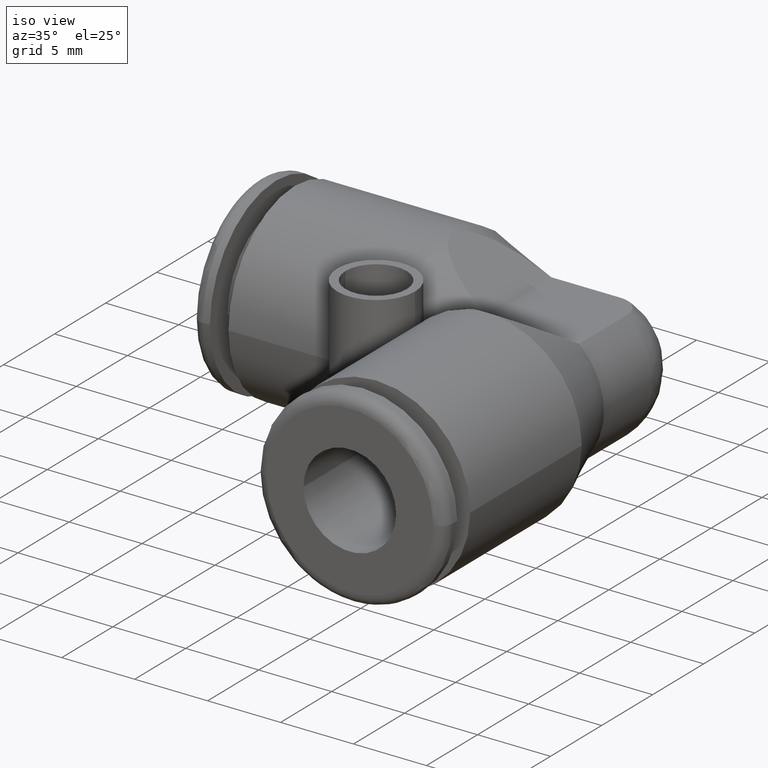
[diagram: clean part render]
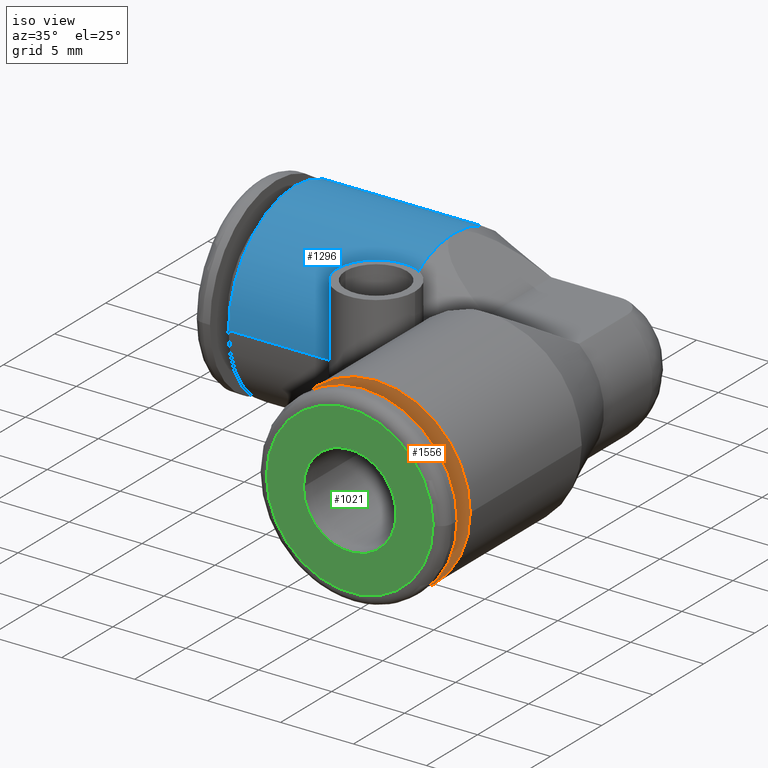
[diagram: same view with three faces highlighted in distinct colors, each labeled with its STEP entity id]
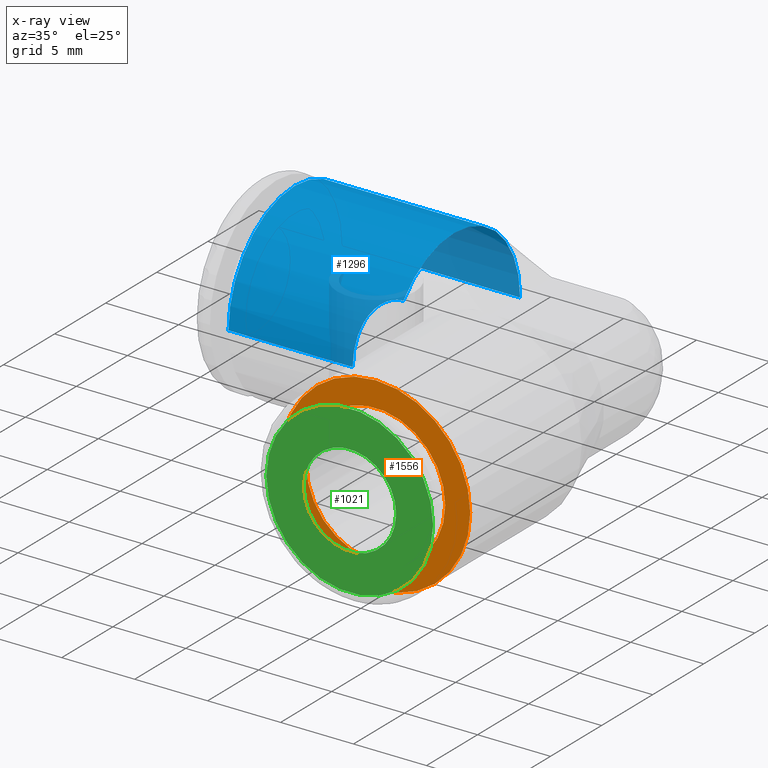
[diagram: x-ray of the same camera — body ghosted, the three highlighted faces saturated]
A machine part, iso view with three faces highlighted in distinct colors.
The next image is the same camera in x-ray (body ghosted, the three faces saturated) — at least one of them is partly hidden behind the body in this view.
Their STEP definitions:

[orange] entity #1556 — the highlighted planar face has unit normal (0, -1, 0).
#535=CARTESIAN_POINT('',(0.E0,-7.3E-1,0.E0));
#536=DIRECTION('',(0.E0,-1.E0,0.E0));
#537=DIRECTION('',(1.E0,0.E0,0.E0));
#538=AXIS2_PLACEMENT_3D('',#535,#536,#537);
#580=CARTESIAN_POINT('',(0.E0,-7.3E-1,0.E0));
#581=DIRECTION('',(0.E0,1.E0,0.E0));
#582=DIRECTION('',(1.E0,0.E0,0.E0));
#583=AXIS2_PLACEMENT_3D('',#580,#581,#582);
#641=CARTESIAN_POINT('',(0.E0,-7.3E-1,0.E0));
#642=DIRECTION('',(0.E0,1.E0,0.E0));
#643=DIRECTION('',(1.E0,0.E0,0.E0));
#644=AXIS2_PLACEMENT_3D('',#641,#642,#643);
#646=CARTESIAN_POINT('',(0.E0,-7.3E-1,0.E0));
#647=DIRECTION('',(0.E0,-1.E0,0.E0));
#648=DIRECTION('',(1.E0,0.E0,0.E0));
#649=AXIS2_PLACEMENT_3D('',#646,#647,#648);
#888=CARTESIAN_POINT('',(2.55E-1,-7.3E-1,0.E0));
#890=VERTEX_POINT('',#888);
#907=CARTESIAN_POINT('',(1.875E-1,-7.3E-1,0.E0));
#909=VERTEX_POINT('',#907);
#911=CARTESIAN_POINT('',(-1.875E-1,-7.3E-1,0.E0));
#913=VERTEX_POINT('',#911);
#918=CARTESIAN_POINT('',(-2.55E-1,-7.3E-1,0.E0));
#919=VERTEX_POINT('',#918);
#1541=CARTESIAN_POINT('',(0.E0,-7.3E-1,0.E0));
#1542=DIRECTION('',(0.E0,-1.E0,0.E0));
#1543=DIRECTION('',(-1.E0,0.E0,0.E0));
#1544=AXIS2_PLACEMENT_3D('',#1541,#1542,#1543);
#1545=PLANE('',#1544);
#1546=ORIENTED_EDGE('',*,*,#1440,.F.);
#1547=ORIENTED_EDGE('',*,*,#1460,.T.);
#1548=EDGE_LOOP('',(#1546,#1547));
#1549=FACE_OUTER_BOUND('',#1548,.F.);
#1551=ORIENTED_EDGE('',*,*,#1550,.F.);
#1553=ORIENTED_EDGE('',*,*,#1552,.T.);
#1554=EDGE_LOOP('',(#1551,#1553));
#1555=FACE_BOUND('',#1554,.F.);
#1556=ADVANCED_FACE('',(#1549,#1555),#1545,.T.);
#539=CIRCLE('',#538,2.55E-1);
#584=CIRCLE('',#583,2.55E-1);
#645=CIRCLE('',#644,1.875E-1);
#650=CIRCLE('',#649,1.875E-1);
#1440=EDGE_CURVE('',#890,#919,#539,.T.);
#1460=EDGE_CURVE('',#890,#919,#584,.T.);
#1550=EDGE_CURVE('',#909,#913,#645,.T.);
#1552=EDGE_CURVE('',#909,#913,#650,.T.);

[blue] entity #1296 — the highlighted cylindrical surface (partial cylindrical patch) has radius 6.477 mm, axis along (1, 0, 0).
#338=CARTESIAN_POINT('',(-7.3E-1,0.E0,0.E0));
#339=DIRECTION('',(1.E0,0.E0,0.E0));
#340=DIRECTION('',(0.E0,1.E0,0.E0));
#341=AXIS2_PLACEMENT_3D('',#338,#339,#340);
#348=CARTESIAN_POINT('',(-3.E-1,0.E0,0.E0));
#349=DIRECTION('',(1.E0,0.E0,0.E0));
#350=DIRECTION('',(0.E0,1.E0,0.E0));
#351=AXIS2_PLACEMENT_3D('',#348,#349,#350);
#353=CARTESIAN_POINT('',(-3.E-1,0.E0,0.E0));
#354=DIRECTION('',(1.E0,0.E0,0.E0));
#355=DIRECTION('',(0.E0,9.311976451540E-7,9.999999999996E-1));
#356=AXIS2_PLACEMENT_3D('',#353,#354,#355);
#358=CARTESIAN_POINT('',(-3.E-1,-1.95E-1,1.643167672515E-1));
#359=CARTESIAN_POINT('',(-3.044697859419E-1,-1.95E-1,1.643167672515E-1));
#360=CARTESIAN_POINT('',(-3.132695326104E-1,-1.955398471062E-1,
1.636809693769E-1));
#361=CARTESIAN_POINT('',(-3.268893782969E-1,-1.982153349675E-1,
1.604520040093E-1));
#362=CARTESIAN_POINT('',(-3.384107549363E-1,-2.020552765828E-1,
1.556111177859E-1));
#363=CARTESIAN_POINT('',(-3.485003067142E-1,-2.066700247858E-1,
1.494514759600E-1));
#364=CARTESIAN_POINT('',(-3.572790369682E-1,-2.118192617506E-1,
1.420851790614E-1));
#365=CARTESIAN_POINT('',(-3.648958623081E-1,-2.172946537848E-1,
1.335857938633E-1));
#366=CARTESIAN_POINT('',(-3.713316011640E-1,-2.228112822687E-1,
1.241849581993E-1));
#367=CARTESIAN_POINT('',(-3.766527918170E-1,-2.281269848004E-1,
1.141352200156E-1));
#368=CARTESIAN_POINT('',(-3.809932047856E-1,-2.330816908493E-1,
1.036563233728E-1));
#369=CARTESIAN_POINT('',(-3.846780453845E-1,-2.378245058896E-1,
9.230141911064E-2));
#370=CARTESIAN_POINT('',(-3.878444839886E-1,-2.424003381803E-1,
7.958589957115E-2));
#371=CARTESIAN_POINT('',(-3.904676804500E-1,-2.466365262385E-1,
6.538290296939E-2));
#372=CARTESIAN_POINT('',(-3.924997516110E-1,-2.502686757192E-1,
4.980784223762E-2));
#373=CARTESIAN_POINT('',(-3.939106615190E-1,-2.530133867205E-1,
3.325420144376E-2));
#374=CARTESIAN_POINT('',(-3.947082784029E-1,-2.546599044207E-1,
1.633665921306E-2));
#375=CARTESIAN_POINT('',(-3.948683298051E-1,-2.55E-1,5.409174075008E-3));
#376=CARTESIAN_POINT('',(-3.948683298051E-1,-2.55E-1,0.E0));
#409=DIRECTION('',(-1.E0,0.E0,0.E0));
#410=VECTOR('',#409,4.3E-1);
#411=CARTESIAN_POINT('',(-3.E-1,2.55E-1,0.E0));
#412=LINE('',#411,#410);
#413=DIRECTION('',(-1.E0,0.E0,0.E0));
#414=VECTOR('',#413,3.351316701949E-1);
#415=CARTESIAN_POINT('',(-3.948683298051E-1,-2.55E-1,0.E0));
#416=LINE('',#415,#414);
#920=CARTESIAN_POINT('',(-3.E-1,2.55E-1,0.E0));
#921=CARTESIAN_POINT('',(-7.3E-1,2.55E-1,0.E0));
#922=VERTEX_POINT('',#920);
#923=VERTEX_POINT('',#921);
#932=CARTESIAN_POINT('',(-7.3E-1,-2.55E-1,0.E0));
#933=VERTEX_POINT('',#932);
#949=VERTEX_POINT('',#358);
#950=VERTEX_POINT('',#376);
#978=CARTESIAN_POINT('',(-3.E-1,2.374553995143E-7,2.549999999999E-1));
#979=VERTEX_POINT('',#978);
#1278=CARTESIAN_POINT('',(-8.715E-1,0.E0,0.E0));
#1279=DIRECTION('',(1.E0,0.E0,0.E0));
#1280=DIRECTION('',(0.E0,-1.E0,0.E0));
#1281=AXIS2_PLACEMENT_3D('',#1278,#1279,#1280);
#1282=CYLINDRICAL_SURFACE('',#1281,2.55E-1);
#1284=ORIENTED_EDGE('',*,*,#1283,.T.);
#1286=ORIENTED_EDGE('',*,*,#1285,.T.);
#1288=ORIENTED_EDGE('',*,*,#1287,.T.);
#1290=ORIENTED_EDGE('',*,*,#1289,.T.);
#1291=ORIENTED_EDGE('',*,*,#1267,.F.);
#1293=ORIENTED_EDGE('',*,*,#1292,.F.);
#1294=EDGE_LOOP('',(#1284,#1286,#1288,#1290,#1291,#1293));
#1295=FACE_OUTER_BOUND('',#1294,.F.);
#1296=ADVANCED_FACE('',(#1295),#1282,.T.);
#342=CIRCLE('',#341,2.55E-1);
#352=CIRCLE('',#351,2.55E-1);
#357=CIRCLE('',#356,2.55E-1);
#377=B_SPLINE_CURVE_WITH_KNOTS('',3,(#358,#359,#360,#361,#362,#363,#364,#365,
#366,#367,#368,#369,#370,#371,#372,#373,#374,#375,#376),.UNSPECIFIED.,.F.,.F.,
(4,1,1,1,1,1,1,1,1,1,1,1,1,1,1,1,4),(0.E0,6.25E-2,1.25E-1,1.875E-1,2.5E-1,
3.125E-1,3.75E-1,4.375E-1,5.E-1,5.625E-1,6.25E-1,6.875E-1,7.5E-1,8.125E-1,
8.75E-1,9.375E-1,1.E0),.UNSPECIFIED.);
#1267=EDGE_CURVE('',#923,#933,#342,.T.);
#1283=EDGE_CURVE('',#922,#979,#352,.T.);
#1285=EDGE_CURVE('',#979,#949,#357,.T.);
#1287=EDGE_CURVE('',#949,#950,#377,.T.);
#1289=EDGE_CURVE('',#950,#933,#416,.T.);
#1292=EDGE_CURVE('',#922,#923,#412,.T.);

[green] entity #1021 — the highlighted planar face has unit normal (0, -1, 0).
#112=CARTESIAN_POINT('',(0.E0,-8.3E-1,0.E0));
#113=DIRECTION('',(0.E0,1.E0,0.E0));
#114=DIRECTION('',(-1.E0,0.E0,0.E0));
#115=AXIS2_PLACEMENT_3D('',#112,#113,#114);
#117=CARTESIAN_POINT('',(0.E0,-8.3E-1,0.E0));
#118=DIRECTION('',(0.E0,1.E0,0.E0));
#119=DIRECTION('',(1.E0,0.E0,0.E0));
#120=AXIS2_PLACEMENT_3D('',#117,#118,#119);
#692=CARTESIAN_POINT('',(0.E0,-8.3E-1,0.E0));
#693=DIRECTION('',(0.E0,1.E0,0.E0));
#694=DIRECTION('',(1.E0,0.E0,0.E0));
#695=AXIS2_PLACEMENT_3D('',#692,#693,#694);
#707=CARTESIAN_POINT('',(0.E0,-8.3E-1,0.E0));
#708=DIRECTION('',(0.E0,1.E0,0.E0));
#709=DIRECTION('',(-1.E0,0.E0,0.E0));
#710=AXIS2_PLACEMENT_3D('',#707,#708,#709);
#896=CARTESIAN_POINT('',(-1.25E-1,-8.3E-1,0.E0));
#897=CARTESIAN_POINT('',(1.25E-1,-8.3E-1,0.E0));
#898=VERTEX_POINT('',#896);
#899=VERTEX_POINT('',#897);
#972=CARTESIAN_POINT('',(2.249999991220E-1,-8.3E-1,0.E0));
#973=CARTESIAN_POINT('',(-2.249999991220E-1,-8.3E-1,0.E0));
#974=VERTEX_POINT('',#972);
#975=VERTEX_POINT('',#973);
#1004=CARTESIAN_POINT('',(0.E0,-8.3E-1,0.E0));
#1005=DIRECTION('',(0.E0,-1.E0,0.E0));
#1006=DIRECTION('',(-1.E0,0.E0,0.E0));
#1007=AXIS2_PLACEMENT_3D('',#1004,#1005,#1006);
#1008=PLANE('',#1007);
#1010=ORIENTED_EDGE('',*,*,#1009,.T.);
#1012=ORIENTED_EDGE('',*,*,#1011,.T.);
#1013=EDGE_LOOP('',(#1010,#1012));
#1014=FACE_OUTER_BOUND('',#1013,.F.);
#1016=ORIENTED_EDGE('',*,*,#1015,.F.);
#1018=ORIENTED_EDGE('',*,*,#1017,.F.);
#1019=EDGE_LOOP('',(#1016,#1018));
#1020=FACE_BOUND('',#1019,.F.);
#1021=ADVANCED_FACE('',(#1014,#1020),#1008,.T.);
#116=CIRCLE('',#115,1.25E-1);
#121=CIRCLE('',#120,1.25E-1);
#696=CIRCLE('',#695,2.249999991220E-1);
#711=CIRCLE('',#710,2.249999991220E-1);
#1009=EDGE_CURVE('',#974,#975,#696,.T.);
#1011=EDGE_CURVE('',#975,#974,#711,.T.);
#1015=EDGE_CURVE('',#898,#899,#116,.T.);
#1017=EDGE_CURVE('',#899,#898,#121,.T.);